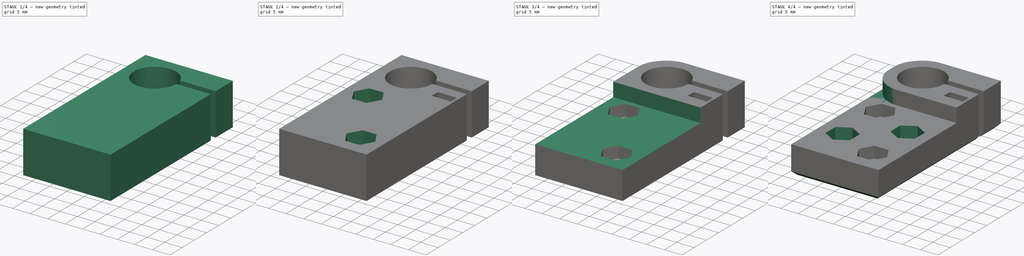
[diagram: build sequence overview — one tinted view per stage of 4, left to right]
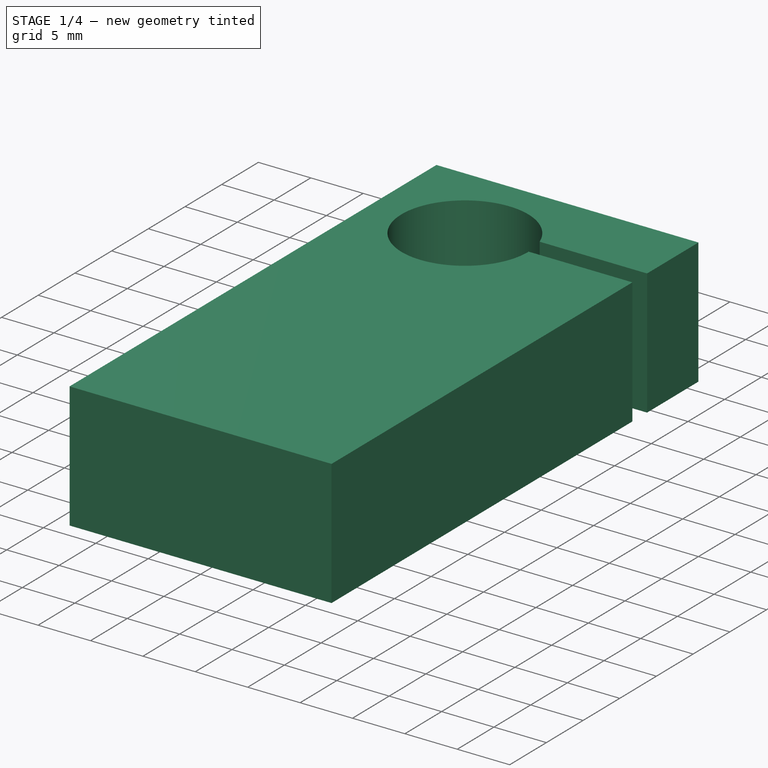
[diagram: stage 1 of 4 — iso view after this stage's code; geometry added in this stage tinted green]
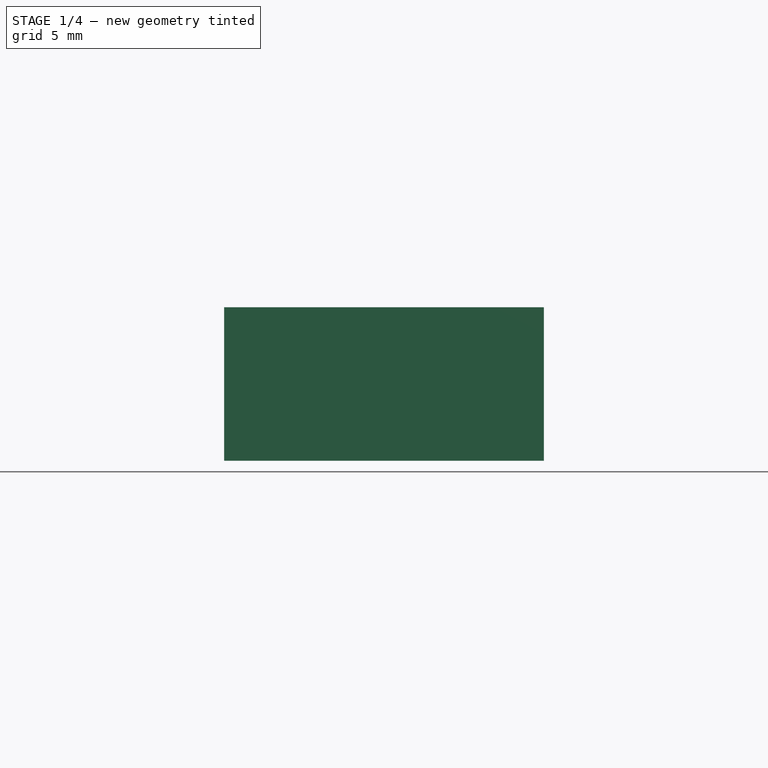
[diagram: stage 1 of 4 — front view after this stage's code; geometry added in this stage tinted green]
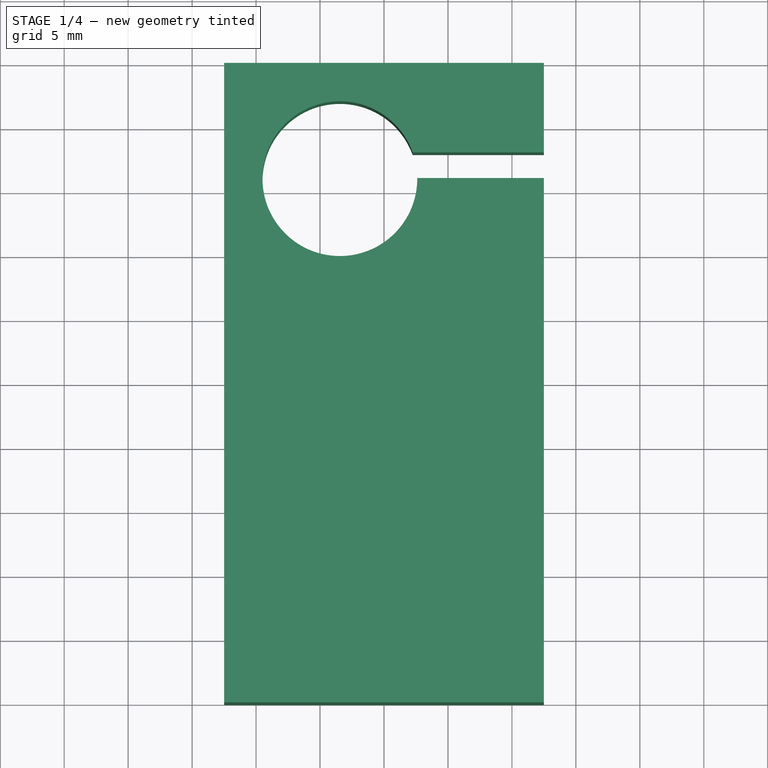
[diagram: stage 1 of 4 — top view after this stage's code; geometry added in this stage tinted green]
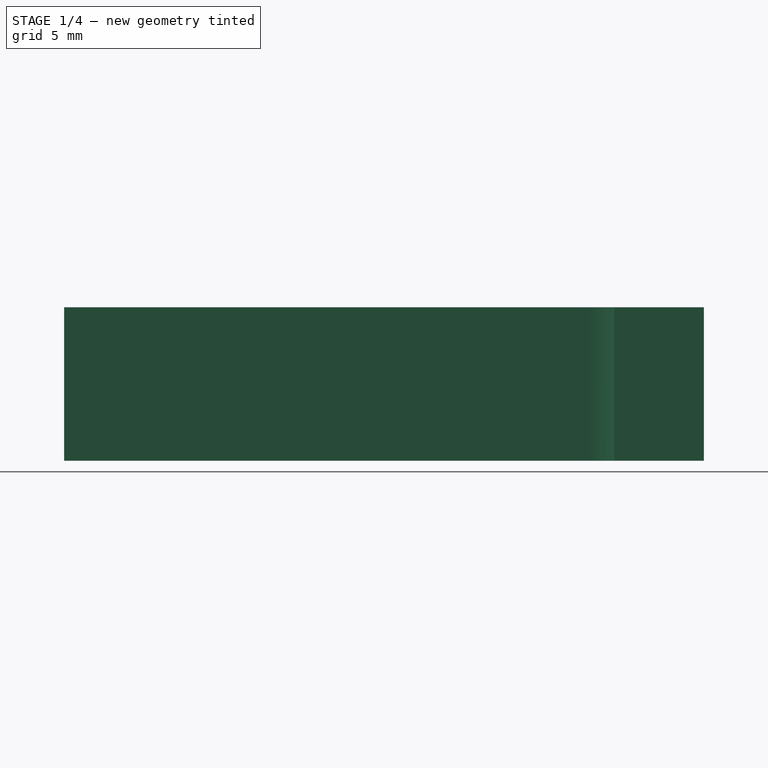
[diagram: stage 1 of 4 — right view after this stage's code; geometry added in this stage tinted green]
FCSTD DOCUMENT  (FreeCAD 0.15R4671 (Git))
Label: Halter Praezisionswelle
License: All rights reserved
LicenseURL: http://de.wikipedia.org/wiki/Alle_Rechte_vorbehalten
objects: Sketcher::SketchObject×8, PartDesign::Pocket×6, Part::Feature×4, PartDesign::Pad×2, PartDesign::Fillet×2, Part::Cut×1, PartDesign::Chamfer×1, App::DocumentObjectGroup×1
note: 32 computed .brp shape members not serialized (recipe doc carries the construction recipe); baked Part::Feature solids carry a one-line shape summary decoded from their .brp

FEATURE [Sketcher::SketchObject] Sketch
  sketch-geometry (4):
    g0: LineSegment StartX=-12.5 StartY=25 StartZ=0 EndX=12.5 EndY=25 EndZ=0
    g1: LineSegment StartX=12.5 StartY=25 StartZ=0 EndX=12.5 EndY=-25 EndZ=0
    g2: LineSegment StartX=12.5 StartY=-25 StartZ=0 EndX=-12.5 EndY=-25 EndZ=0
    g3: LineSegment StartX=-12.5 StartY=-25 StartZ=0 EndX=-12.5 EndY=25 EndZ=0
  constraints (12):
    c: Coincident(g0,g1)
    c: Coincident(g1,g2)
    c: Coincident(g2,g3)
    c: Coincident(g3,g0)
    c: Horizontal(g0)
    c: Horizontal(g2)
    c: Vertical(g1)
    c: Vertical(g3)
    c: Symmetric(g1,g2,g-2)
    c: Symmetric(g1,g0,g-1)
    c: DistanceX(g0) = 25
    c: DistanceY(g1) = -50
FEATURE [PartDesign::Pad] Pad
  Length = 12
  Length2 = 100
  Sketch = -> Sketch
  Type = 0
FEATURE [Sketcher::SketchObject] Sketch001
  ExternalGeometry = -> [Pad]
  Placement = pos=(0,0,12) rot=(0,0,1;0rad)
  Support = -> Pad [Face6]
  sketch-geometry (5):
    g0: Circle [constr] CenterX=-3.45 CenterY=15.95 CenterZ=0 NormalX=0 NormalY=0 NormalZ=1 Radius=6.05
    g1: ArcOfCircle CenterX=-3.45 CenterY=15.95 CenterZ=0 NormalX=0 NormalY=0 NormalZ=1 Radius=6.05 StartAngle=0.345687 EndAngle=6.29145
    g2: LineSegment StartX=2.2421 StartY=18 StartZ=0 EndX=12.5 EndY=18 EndZ=0
    g3: LineSegment StartX=12.5 StartY=18 StartZ=0 EndX=12.5 EndY=16 EndZ=0
    g4: LineSegment StartX=12.5 StartY=16 StartZ=0 EndX=2.59979 EndY=16 EndZ=0
  constraints (15):
    c: Radius(g0) = 6.05
    c: DistanceY(g0,g-3) = 9.05
    c: DistanceX(g-3,g0) = 9.05
    c: Coincident(g1,g0)
    c: PointOnObject(g1,g0)
    c: Horizontal(g2)
    c: Coincident(g2,g3)
    c: Coincident(g3,g4)
    c: Horizontal(g4)
    c: Coincident(g1,g2)
    c: Coincident(g1,g4)
    c: DistanceY(g3) = -2
    c: Vertical(g3)
    c: PointOnObject(g2,g-4)
    c: DistanceY(g2,g-4) = 7
FEATURE [PartDesign::Pocket] Pocket
  Length = 5
  Sketch = -> Sketch001
  Type = 1
FEATURE [Sketcher::SketchObject] Sketch003
  Placement = pos=(0,13,0) rot=(1,0,0;1.5708rad)
  sketch-geometry (10):
    g0: LineSegment StartX=9.05 StartY=2.79571 StartZ=0 EndX=11.825 EndY=4.39785 EndZ=0
    g1: LineSegment StartX=11.825 StartY=4.39785 StartZ=0 EndX=11.825 EndY=7.60215 EndZ=0
    g2: LineSegment [constr] StartX=11.825 StartY=7.60215 StartZ=0 EndX=9.05 EndY=9.20429 EndZ=0
    g3: LineSegment [constr] StartX=9.05 StartY=9.20429 StartZ=0 EndX=6.275 EndY=7.60215 EndZ=0
    g4: LineSegment StartX=6.275 StartY=7.60215 StartZ=0 EndX=6.275 EndY=4.39785 EndZ=0
    g5: LineSegment StartX=6.275 StartY=4.39785 StartZ=0 EndX=9.05 EndY=2.79571 EndZ=0
    g6: Circle [constr] CenterX=9.05 CenterY=6 CenterZ=0 NormalX=0 NormalY=0 NormalZ=1 Radius=3.20429
    g7: LineSegment StartX=6.275 StartY=7.60215 StartZ=0 EndX=6.275 EndY=12 EndZ=0
    g8: LineSegment StartX=6.275 StartY=12 StartZ=0 EndX=11.825 EndY=12 EndZ=0
    g9: LineSegment StartX=11.825 StartY=12 StartZ=0 EndX=11.825 EndY=7.60215 EndZ=0
  constraints (26):
    c: Coincident(g0,g1)
    c: Coincident(g1,g2)
    c: Coincident(g2,g3)
    c: Coincident(g3,g4)
    c: Coincident(g4,g5)
    c: Coincident(g5,g0)
    c: Equal(g0, g1-g5) x5
    c: PointOnObject(g0,g6)
    c: PointOnObject(g1,g6)
    c: PointOnObject(g2,g6)
    c: PointOnObject(g3,g6)
    c: PointOnObject(g4,g6)
    c: PointOnObject(g5,g6)
    c: Vertical(g4)
    c: Distance(g4,g0) = 5.55
    c: DistanceX(g-1,g6) = 9.05
    c: DistanceY(g-1,g6) = 6
    c: Vertical(g7)
    c: Coincident(g7,g8)
    c: Horizontal(g8)
    c: Coincident(g8,g9)
    c: Vertical(g9)
    c: Equal(g9,g7)
    c: Coincident(g3,g7)
    c: Coincident(g1,g9)
    c: DistanceY(g-1,g7) = 12
FEATURE [PartDesign::Pad] Pad001
  Length = 2.5
  Length2 = 100
  Placement = pos=(0,13,0) rot=(1,0,0;1.5708rad)
  Sketch = -> Sketch003
  Type = 0
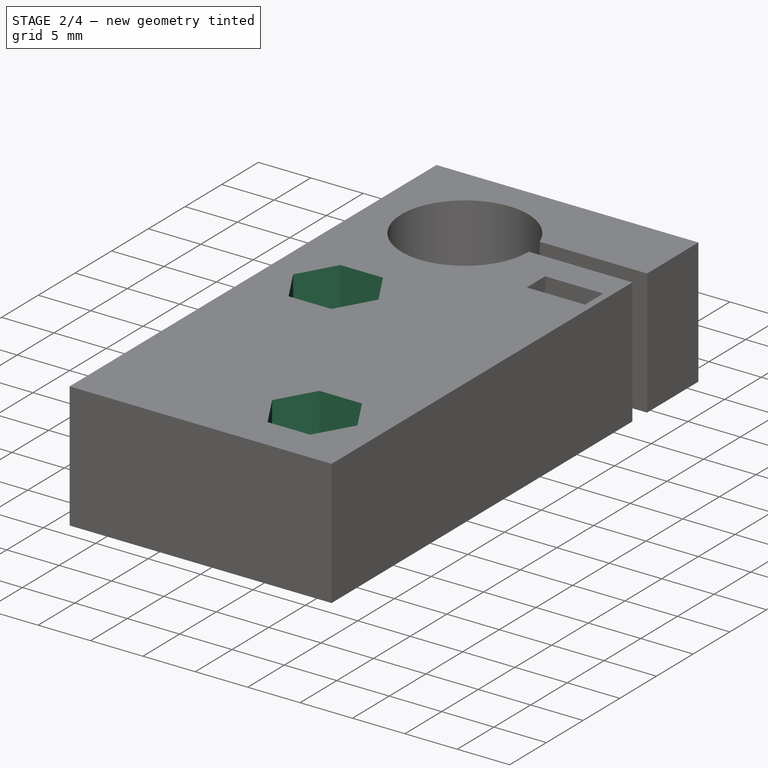
[diagram: stage 2 of 4 — iso view after this stage's code; geometry added in this stage tinted green]
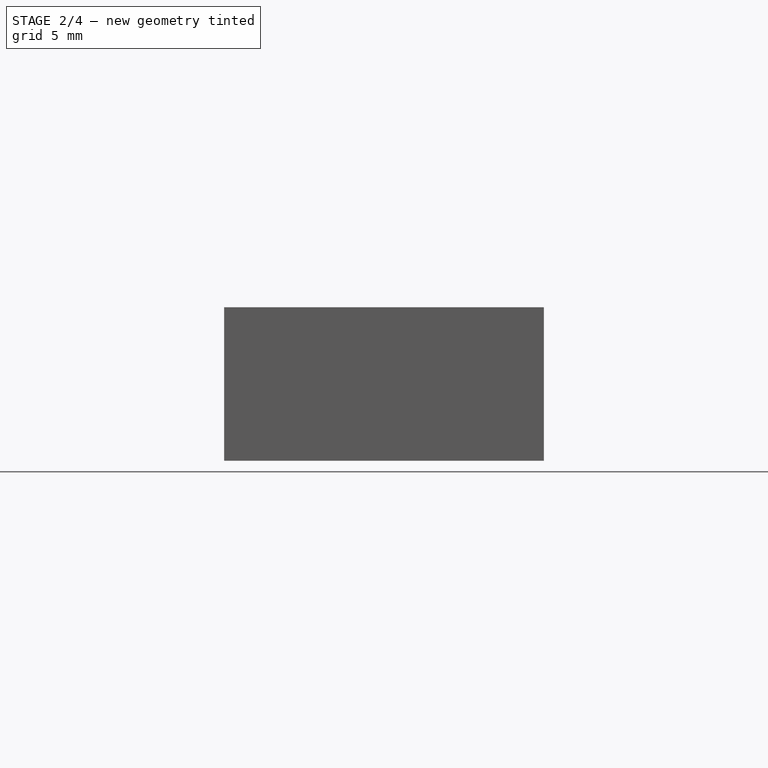
[diagram: stage 2 of 4 — front view after this stage's code; geometry added in this stage tinted green]
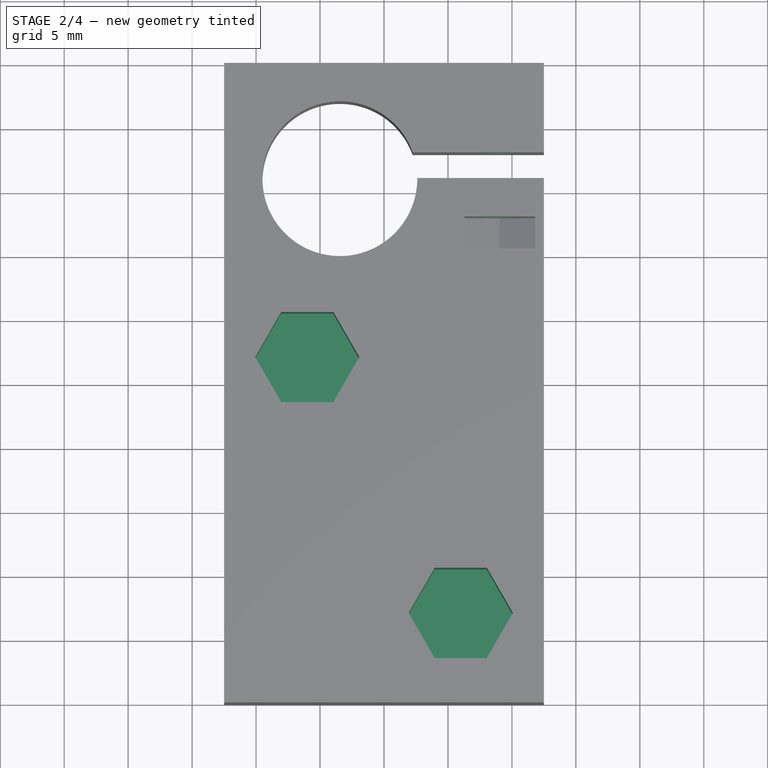
[diagram: stage 2 of 4 — top view after this stage's code; geometry added in this stage tinted green]
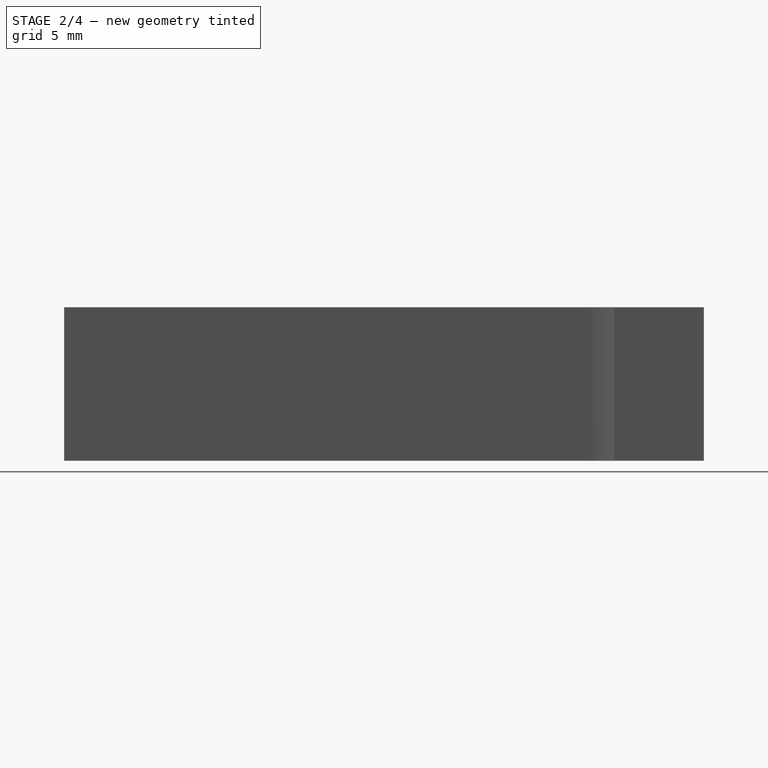
[diagram: stage 2 of 4 — right view after this stage's code; geometry added in this stage tinted green]
FEATURE [Sketcher::SketchObject] Sketch002
  ExternalGeometry = -> [Pocket]
  Placement = pos=(0,25,0) rot=(0,0.707107,0.707107;3.14159rad)
  Support = -> Pocket [Face1]
  sketch-geometry (2):
    g0: Circle CenterX=-9.05 CenterY=6 CenterZ=0 NormalX=0 NormalY=0 NormalZ=1 Radius=1.55
    g1: LineSegment [constr] StartX=-9.05 StartY=6 StartZ=0 EndX=-12.5 EndY=6 EndZ=0
  constraints (6):
    c: Coincident(g1,g0)
    c: PointOnObject(g1,g-3)
    c: Horizontal(g1)
    c: DistanceX(g1) = -3.45
    c: Radius(g0) = 1.55
    c: Symmetric(g-3,g-3,g1)
FEATURE [PartDesign::Pocket] Pocket001
  Length = 18
  Sketch = -> Sketch002
  Type = 0
FEATURE [Part::Cut] Cut
  Base = -> Pocket001
  Tool = -> Pad001
FEATURE [Sketcher::SketchObject] Sketch005
  Placement = pos=(0,0,12) rot=(0,0,1;0rad)
  Support = -> Cut [Face4]
  sketch-geometry (14):
    g0: LineSegment StartX=-3.96484 StartY=-1.525 StartZ=0 EndX=-1.92968 EndY=2 EndZ=0
    g1: LineSegment StartX=-1.92968 StartY=2 StartZ=0 EndX=-3.96484 EndY=5.525 EndZ=0
    g2: LineSegment StartX=-3.96484 StartY=5.525 StartZ=0 EndX=-8.03516 EndY=5.525 EndZ=0
    g3: LineSegment StartX=-8.03516 StartY=5.525 StartZ=0 EndX=-10.0703 EndY=2 EndZ=0
    g4: LineSegment StartX=-10.0703 StartY=2 StartZ=0 EndX=-8.03516 EndY=-1.525 EndZ=0
    g5: LineSegment StartX=-8.03516 StartY=-1.525 StartZ=0 EndX=-3.96484 EndY=-1.525 EndZ=0
    g6: Circle [constr] CenterX=-6 CenterY=2 CenterZ=0 NormalX=0 NormalY=0 NormalZ=1 Radius=4.07032
    g7: LineSegment StartX=8.03516 StartY=-21.525 StartZ=0 EndX=10.0703 EndY=-18 EndZ=0
    g8: LineSegment StartX=10.0703 StartY=-18 StartZ=0 EndX=8.03516 EndY=-14.475 EndZ=0
    g9: LineSegment StartX=8.03516 StartY=-14.475 StartZ=0 EndX=3.96484 EndY=-14.475 EndZ=0
    g10: LineSegment StartX=3.96484 StartY=-14.475 StartZ=0 EndX=1.92968 EndY=-18 EndZ=0
    g11: LineSegment StartX=1.92968 StartY=-18 StartZ=0 EndX=3.96484 EndY=-21.525 EndZ=0
    g12: LineSegment StartX=3.96484 StartY=-21.525 StartZ=0 EndX=8.03516 EndY=-21.525 EndZ=0
    g13: Circle [constr] CenterX=6 CenterY=-18 CenterZ=0 NormalX=0 NormalY=0 NormalZ=1 Radius=4.07032
  constraints (30):
    c: Coincident(g0,g1)
    c: Coincident(g1,g2)
    c: Coincident(g2,g3)
    c: Coincident(g3,g4)
    c: Coincident(g4,g5)
    c: Coincident(g5,g0)
    c: Equal(g0, g1-g5) x5
    c: PointOnObject(g0,g6)
    c: PointOnObject(g1,g6)
    c: PointOnObject(g2,g6)
    c: PointOnObject(g3,g6)
    c: PointOnObject(g4,g6)
    c: PointOnObject(g5,g6)
    c: Horizontal(g5)
    c: Distance(g3,g0) = 7.05
    c: Coincident(g7,g8)
    c: Coincident(g8,g9)
    c: Coincident(g9,g10)
    c: Coincident(g10,g11)
    c: Coincident(g11,g12)
    c: Coincident(g12,g7)
    c: Equal(g7, g8-g12) x5
    c: PointOnObject(g7,g13)
    c: PointOnObject(g8,g13)
    c: PointOnObject(g9,g13)
    c: PointOnObject(g10,g13)
    c: PointOnObject(g11,g13)
    c: PointOnObject(g12,g13)
    c: Horizontal(g12)
    c: Equal(g6,g13)
FEATURE [PartDesign::Pocket] Pocket003
  Length = 7.3
  Sketch = -> Sketch005
  Type = 0
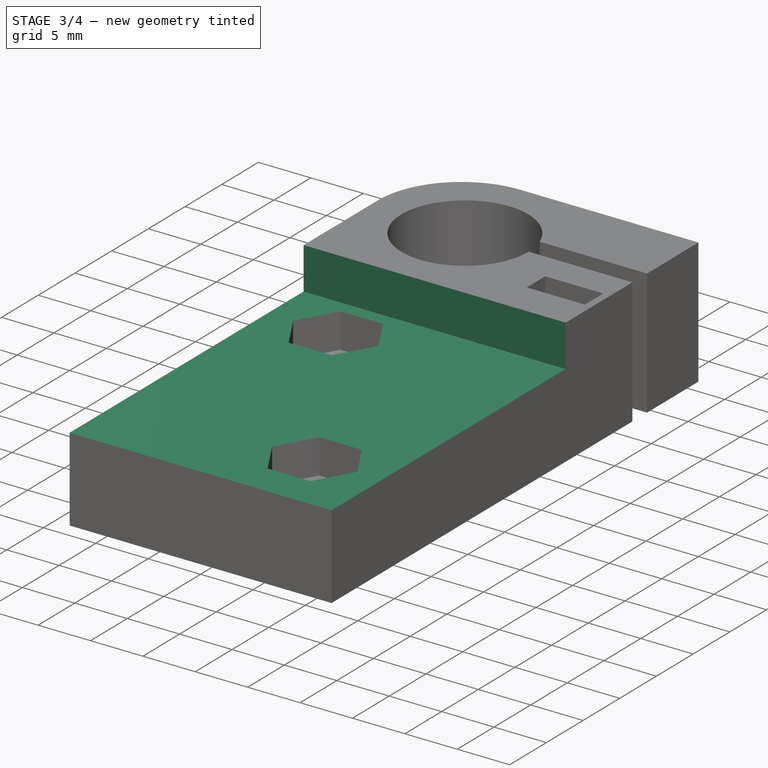
[diagram: stage 3 of 4 — iso view after this stage's code; geometry added in this stage tinted green]
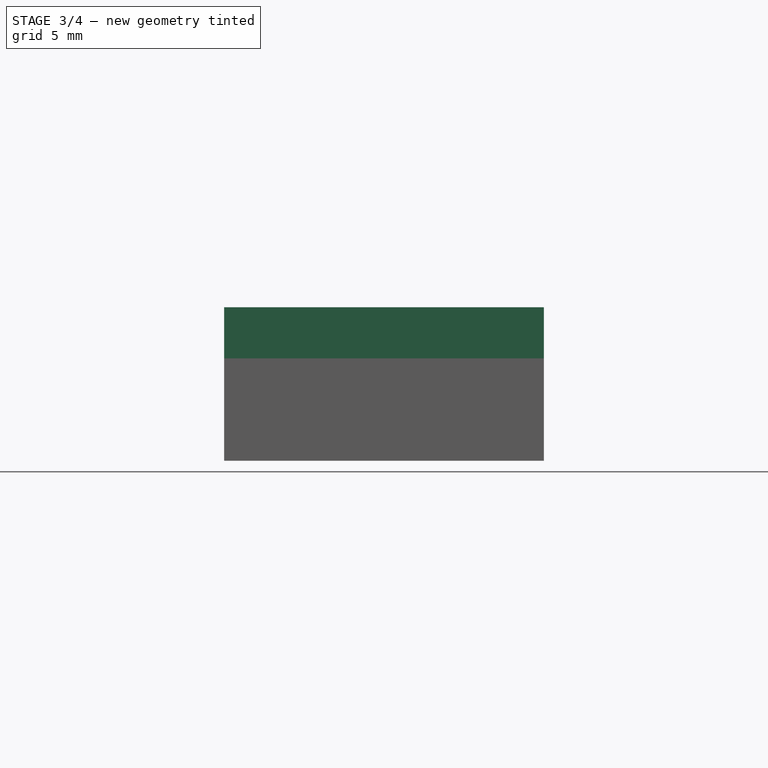
[diagram: stage 3 of 4 — front view after this stage's code; geometry added in this stage tinted green]
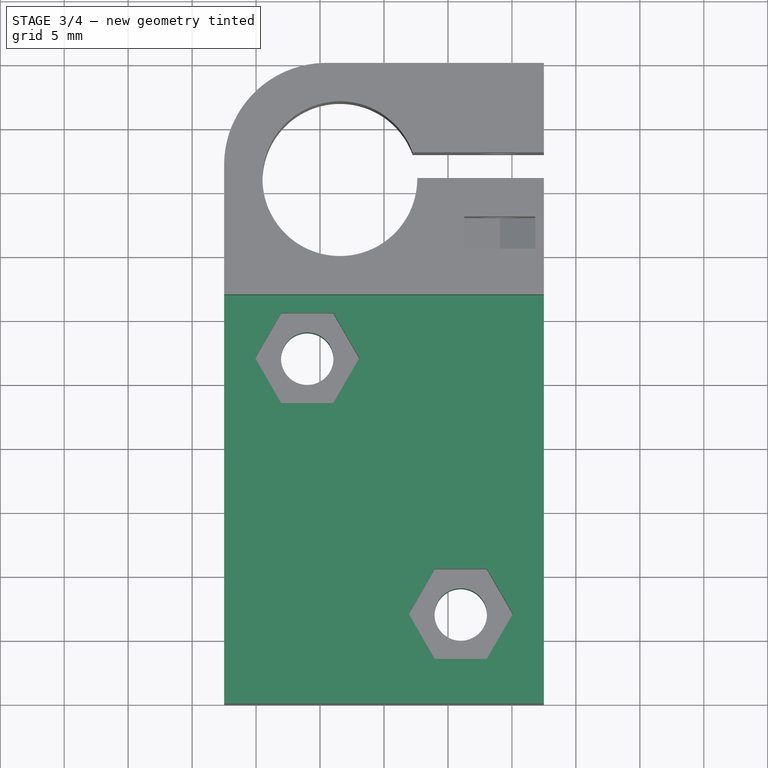
[diagram: stage 3 of 4 — top view after this stage's code; geometry added in this stage tinted green]
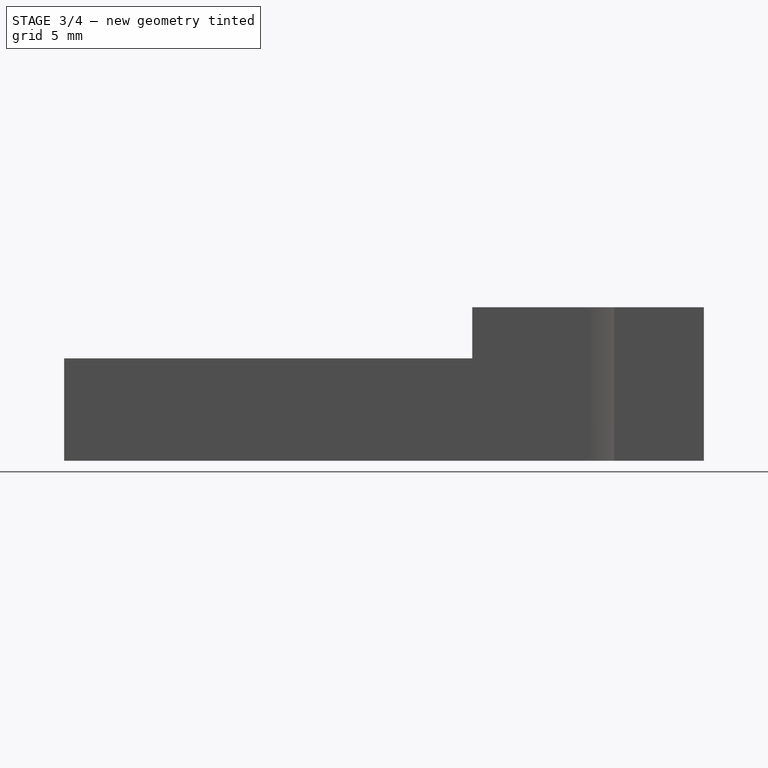
[diagram: stage 3 of 4 — right view after this stage's code; geometry added in this stage tinted green]
FEATURE [PartDesign::Fillet] Fillet
  Base = -> Pocket003 [Edge1]
  Radius = 8
FEATURE [Part::Feature] Part__Feature  label="ISO7048-M3x16_"
  Placement = pos=(9.05,25,6) rot=(-1,0,0;1.5708rad)
  shape: bbox 5.5 x 18 x 5.5 mm, 28 faces (baked)
FEATURE [Part::Feature] Part__Feature001  label="ISO4032-M3_"
  Placement = pos=(9.05,10.5,6) rot=(-0.935113,0.250563,0.250563;1.63783rad)
  shape: bbox 6.351 x 2.4 x 6.351 mm, 25 faces (baked)
FEATURE [Part::Feature] Part__Feature002  label="ISO4032-M4_"
  Placement = pos=(-6,2,4.7) rot=(0,0,1;0rad)
  shape: bbox 8.083 x 8.083 x 3.2 mm, 25 faces (baked)
FEATURE [Part::Feature] Part__Feature003  label="ISO4032-M4_001"
  Placement = pos=(6,-18,4.7) rot=(0,0,1;0rad)
  shape: bbox 8.083 x 8.083 x 3.2 mm, 25 faces (baked)
FEATURE [Sketcher::SketchObject] Sketch006
  ExternalGeometry = -> [Fillet]
  Placement = pos=(0,0,12) rot=(0,0,1;0rad)
  Support = -> Fillet [Face5]
  sketch-geometry (4):
    g0: LineSegment StartX=12.5 StartY=-25 StartZ=0 EndX=-12.5 EndY=-25 EndZ=0
    g1: LineSegment StartX=-12.5 StartY=-25 StartZ=0 EndX=-12.5 EndY=6.9 EndZ=0
    g2: LineSegment StartX=-12.5 StartY=6.9 StartZ=0 EndX=12.5 EndY=6.9 EndZ=0
    g3: LineSegment StartX=12.5 StartY=6.9 StartZ=0 EndX=12.5 EndY=-25 EndZ=0
  constraints (11):
    c: Coincident(g0,g1)
    c: Coincident(g1,g2)
    c: Coincident(g2,g3)
    c: Coincident(g3,g0)
    c: Horizontal(g0)
    c: Horizontal(g2)
    c: Vertical(g1)
    c: Vertical(g3)
    c: Coincident(g0,g-4)
    c: Coincident(g-4,g0)
    c: DistanceY(g-3,g1) = -9.05
FEATURE [PartDesign::Pocket] Pocket004
  Length = 4
  Sketch = -> Sketch006
  Type = 0
FEATURE [Sketcher::SketchObject] Sketch004
  ExternalGeometry = -> [Cut]
  Placement = pos=(0,0,4.7) rot=(0,0,1;0rad)
  Support = -> Pocket004 [Face39]
  sketch-geometry (2):
    g0: Circle CenterX=6 CenterY=-18 CenterZ=0 NormalX=0 NormalY=0 NormalZ=1 Radius=2.05
    g1: Circle CenterX=-6 CenterY=2 CenterZ=0 NormalX=0 NormalY=0 NormalZ=1 Radius=2.05
  constraints (6):
    c: Equal(g0,g1)
    c: Radius(g1) = 2.05
    c: DistanceX(g1,g0) = 12
    c: DistanceY(g-3,g0) = 7
    c: DistanceY(g1,g0) = -20
    c: DistanceX(g-1,g1) = -6
FEATURE [PartDesign::Pocket] Pocket005
  Length = 5
  Sketch = -> Sketch004
  Type = 1
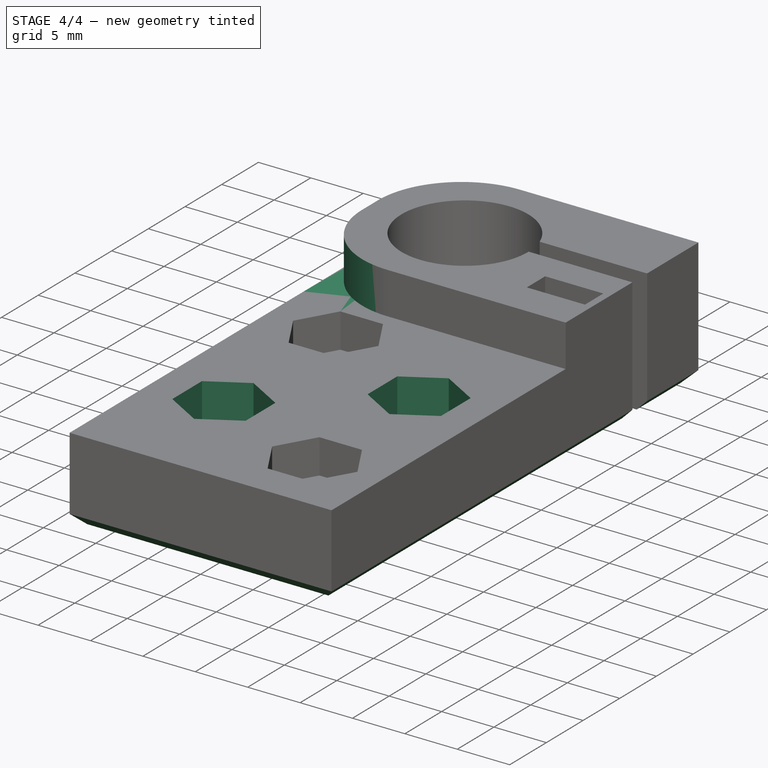
[diagram: stage 4 of 4 — iso view after this stage's code; geometry added in this stage tinted green]
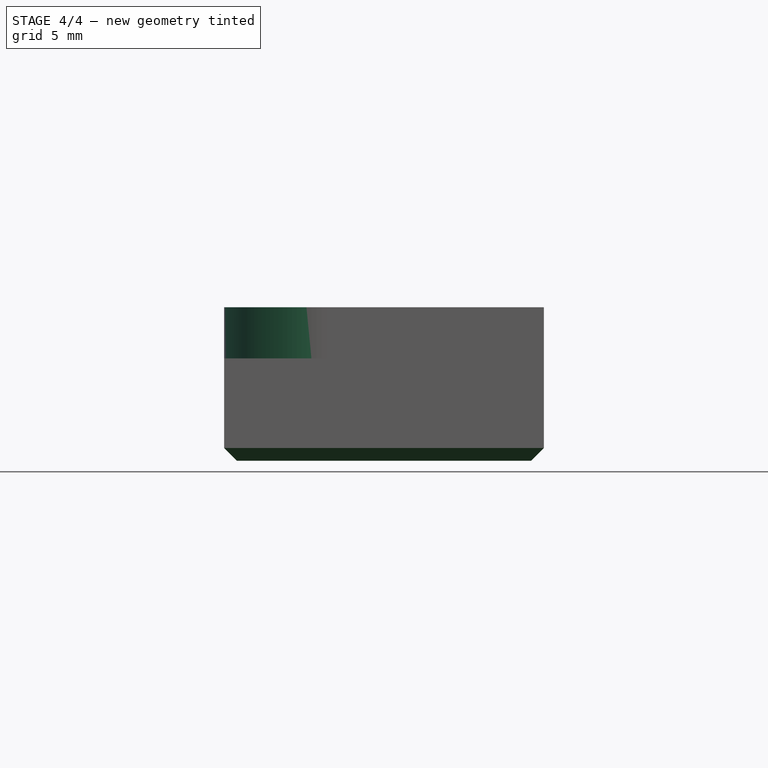
[diagram: stage 4 of 4 — front view after this stage's code; geometry added in this stage tinted green]
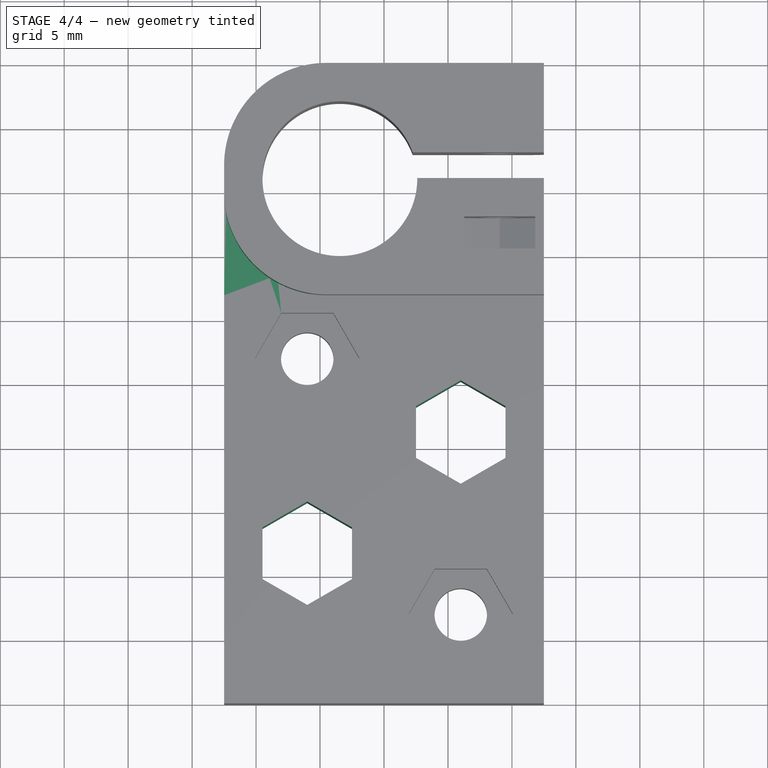
[diagram: stage 4 of 4 — top view after this stage's code; geometry added in this stage tinted green]
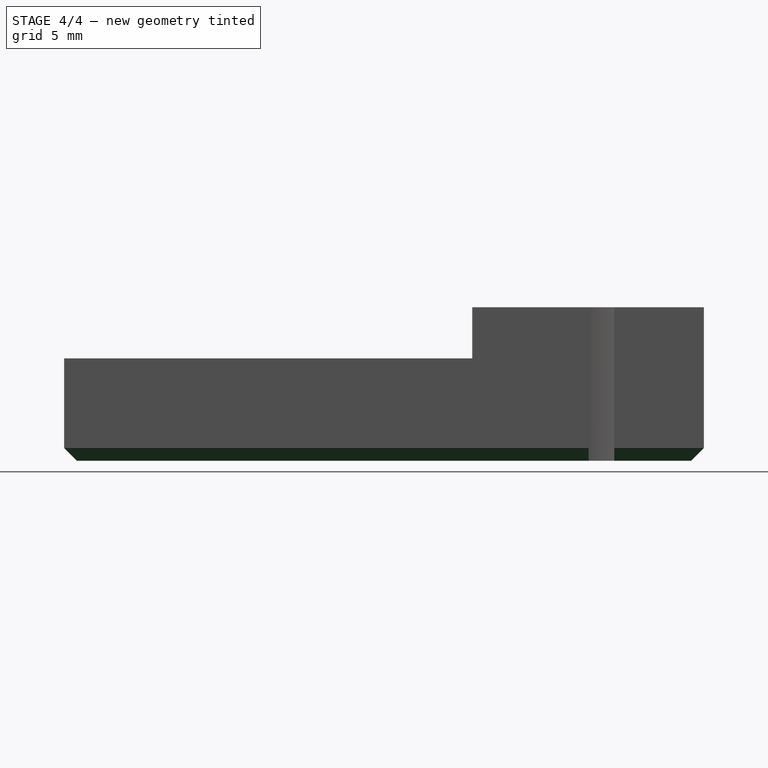
[diagram: stage 4 of 4 — right view after this stage's code; geometry added in this stage tinted green]
FEATURE [PartDesign::Fillet] Fillet001
  Base = -> Pocket005 [Edge32]
  Radius = 8
FEATURE [PartDesign::Chamfer] Chamfer
  Base = -> Fillet001 [Edge20,Edge42,Edge36,Edge32,Edge26,Edge72]
  Size = 1
FEATURE [App::DocumentObjectGroup] Gruppe  label="Ext. Bauteile"
  Group = -> [Part__Feature003,Part__Feature,Part__Feature001,Part__Feature002]
FEATURE [Sketcher::SketchObject] Sketch007
  ExternalGeometry = -> [Chamfer]
  Placement = pos=(0,0,8) rot=(0,0,1;0rad)
  Support = -> Chamfer [Face4]
  sketch-geometry (18):
    g0: LineSegment StartX=9.5 StartY=-5.80823 StartZ=0 EndX=9.5 EndY=-1.76677 EndZ=0
    g1: LineSegment StartX=9.5 StartY=-1.76677 StartZ=0 EndX=6 EndY=0.253952 EndZ=0
    g2: LineSegment StartX=6 StartY=0.253952 StartZ=0 EndX=2.5 EndY=-1.76677 EndZ=0
    g3: LineSegment StartX=2.5 StartY=-1.76677 StartZ=0 EndX=2.5 EndY=-5.80823 EndZ=0
    g4: LineSegment StartX=2.5 StartY=-5.80823 StartZ=0 EndX=6 EndY=-7.82895 EndZ=0
    g5: LineSegment StartX=6 StartY=-7.82895 StartZ=0 EndX=9.5 EndY=-5.80823 EndZ=0
    g6: Circle [constr] CenterX=6 CenterY=-3.7875 CenterZ=0 NormalX=0 NormalY=0 NormalZ=1 Radius=4.04145
    g7: LineSegment StartX=-9.5 StartY=-11.2418 StartZ=0 EndX=-9.5 EndY=-15.2832 EndZ=0
    g8: LineSegment StartX=-9.5 StartY=-15.2832 StartZ=0 EndX=-6 EndY=-17.304 EndZ=0
    g9: LineSegment StartX=-6 StartY=-17.304 StartZ=0 EndX=-2.5 EndY=-15.2832 EndZ=0
    g10: LineSegment StartX=-2.5 StartY=-15.2832 StartZ=0 EndX=-2.5 EndY=-11.2418 EndZ=0
    g11: LineSegment StartX=-2.5 StartY=-11.2418 StartZ=0 EndX=-6 EndY=-9.22105 EndZ=0
    g12: LineSegment StartX=-6 StartY=-9.22105 StartZ=0 EndX=-9.5 EndY=-11.2418 EndZ=0
    g13: Circle [constr] CenterX=-6 CenterY=-13.2625 CenterZ=0 NormalX=0 NormalY=0 NormalZ=1 Radius=4.04145
    g14: LineSegment [constr] StartX=-6 StartY=-1.525 StartZ=0 EndX=-6 EndY=-13.2625 EndZ=0
    g15: LineSegment [constr] StartX=-6 StartY=-13.2625 StartZ=0 EndX=-6 EndY=-25 EndZ=0
    g16: LineSegment [constr] StartX=6 StartY=6.9 StartZ=0 EndX=6 EndY=-3.7875 EndZ=0
    g17: LineSegment [constr] StartX=6 StartY=-3.7875 StartZ=0 EndX=6 EndY=-14.475 EndZ=0
  constraints (46):
    c: Coincident(g0,g1)
    c: Coincident(g1,g2)
    c: Coincident(g2,g3)
    c: Coincident(g3,g4)
    c: Coincident(g4,g5)
    c: Coincident(g5,g0)
    c: Equal(g0, g1-g5) x5
    c: PointOnObject(g0,g6)
    c: PointOnObject(g1,g6)
    c: PointOnObject(g2,g6)
    c: PointOnObject(g3,g6)
    c: PointOnObject(g4,g6)
    c: PointOnObject(g5,g6)
    c: Coincident(g7,g8)
    c: Coincident(g8,g9)
    c: Coincident(g9,g10)
    c: Coincident(g10,g11)
    c: Coincident(g11,g12)
    c: Coincident(g12,g7)
    c: Equal(g7, g8-g12) x5
    c: PointOnObject(g7,g13)
    c: PointOnObject(g8,g13)
    c: PointOnObject(g9,g13)
    c: PointOnObject(g10,g13)
    c: PointOnObject(g11,g13)
    c: PointOnObject(g12,g13)
    c: Equal(g13,g6)
    c: PointOnObject(g14,g-7)
    c: Coincident(g14,g15)
    c: PointOnObject(g15,g-8)
    c: Vertical(g15)
    c: Equal(g14,g15)
    c: Coincident(g13,g14)
    c: Vertical(g14)
    c: Symmetric(g-7,g-7,g14)
    c: PointOnObject(g16,g-6)
    c: Vertical(g16)
    c: Coincident(g16,g17)
    c: PointOnObject(g17,g-5)
    c: Vertical(g17)
    c: Equal(g17,g16)
    c: Coincident(g16,g6)
    c: Symmetric(g-5,g-5,g17)
    c: DistanceX(g-8,g7) = 3
    c: Vertical(g10)
    c: Vertical(g0)
FEATURE [PartDesign::Pocket] Pocket006
  Length = 5
  Sketch = -> Sketch007
  Type = 1
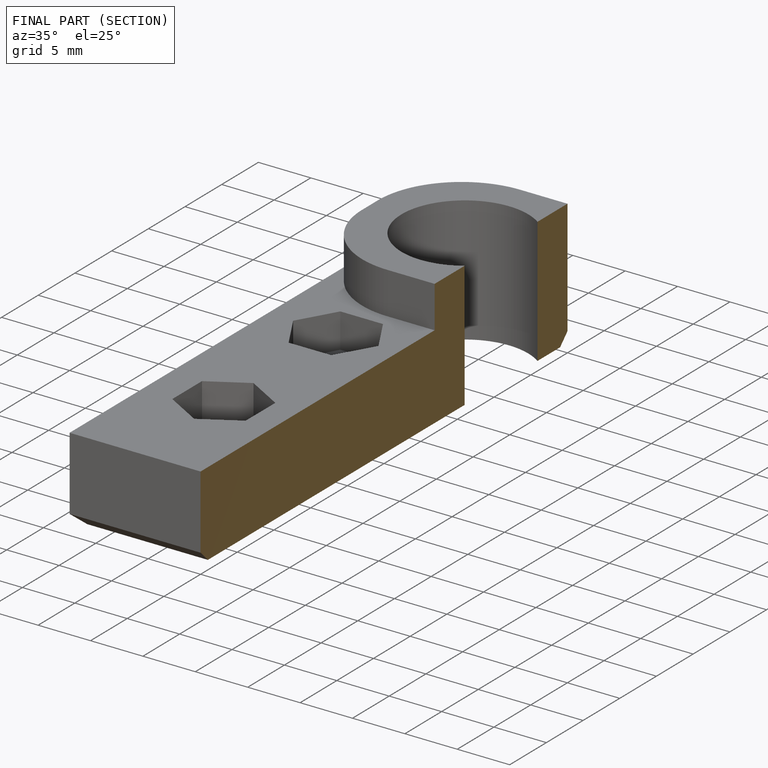
[diagram: finished part — half-section view (interior)]
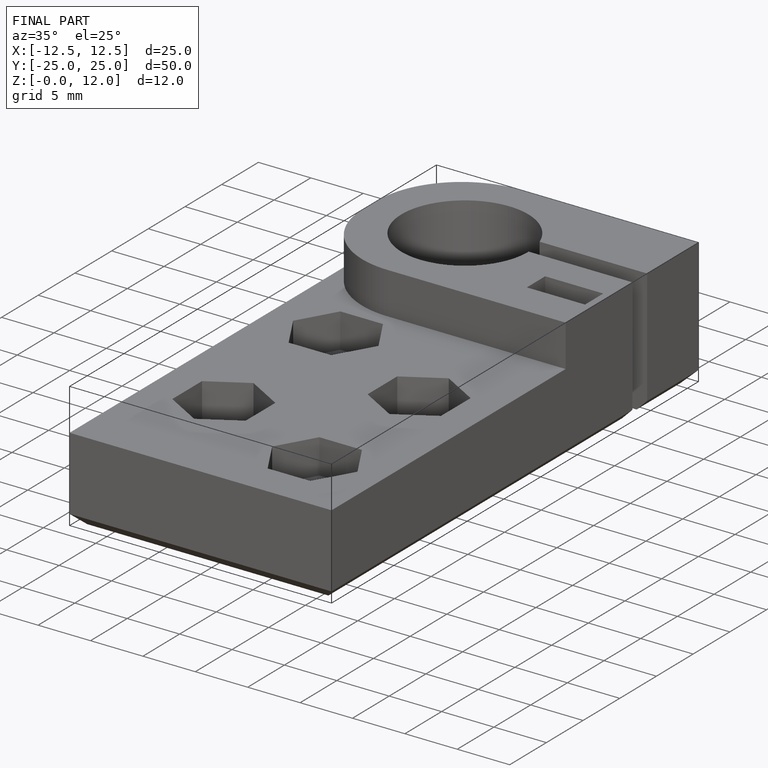
[diagram: finished part — iso view with bounding-box wireframe]
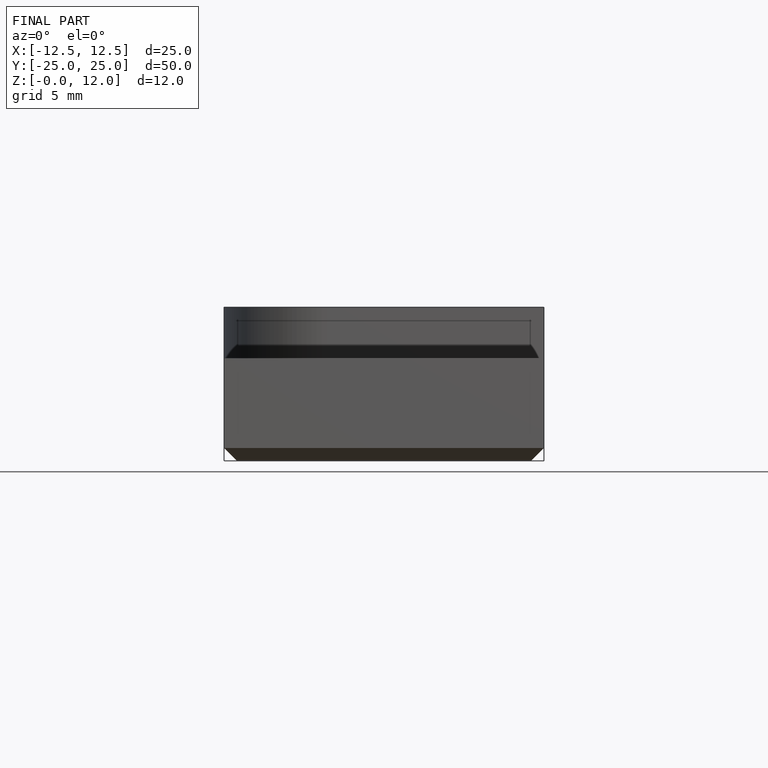
[diagram: finished part — front view with bounding-box wireframe]
